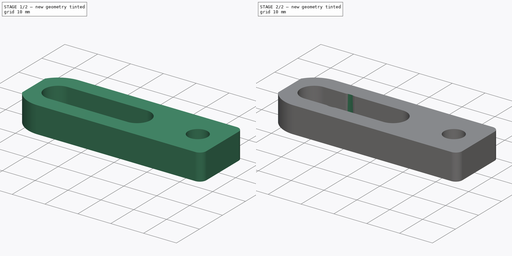
[diagram: build sequence overview — one tinted view per stage of 2, left to right]
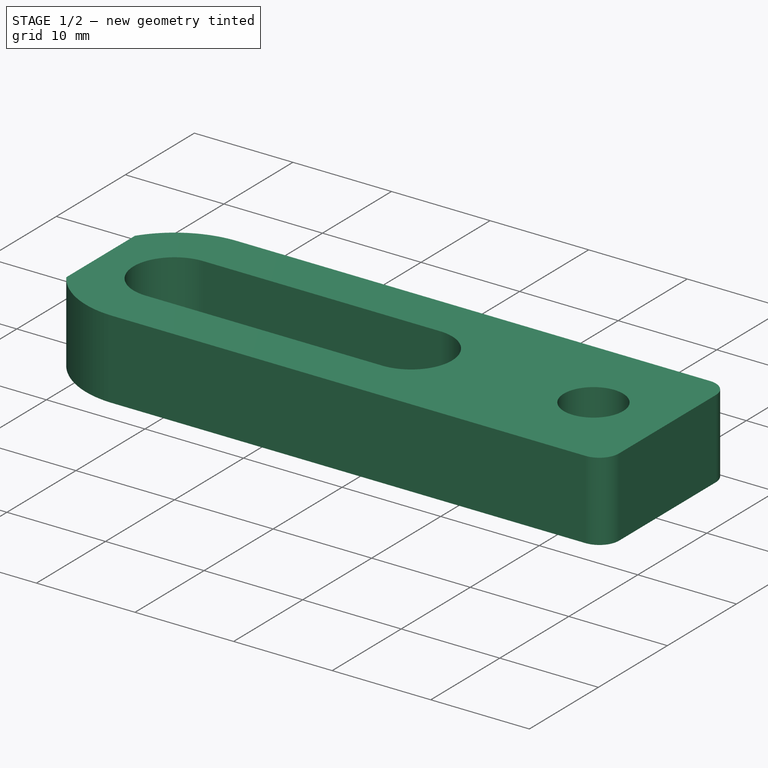
[diagram: stage 1 of 2 — iso view after this stage's code; geometry added in this stage tinted green]
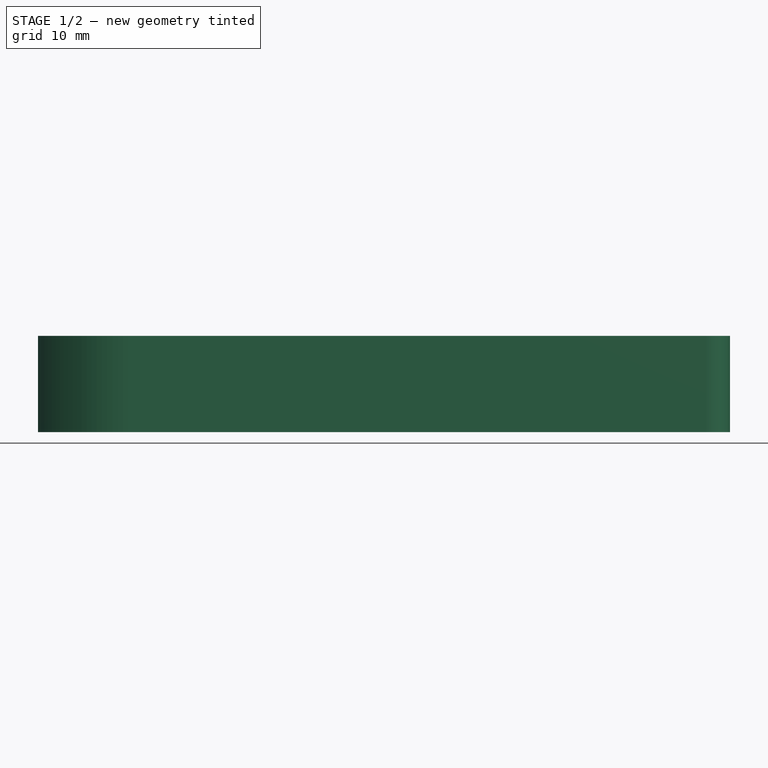
[diagram: stage 1 of 2 — front view after this stage's code; geometry added in this stage tinted green]
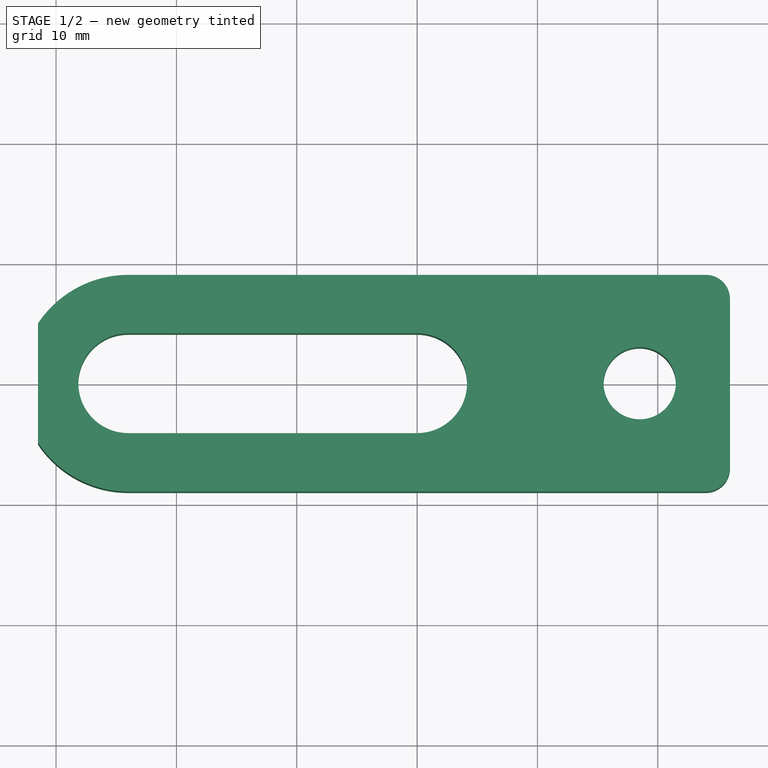
[diagram: stage 1 of 2 — top view after this stage's code; geometry added in this stage tinted green]
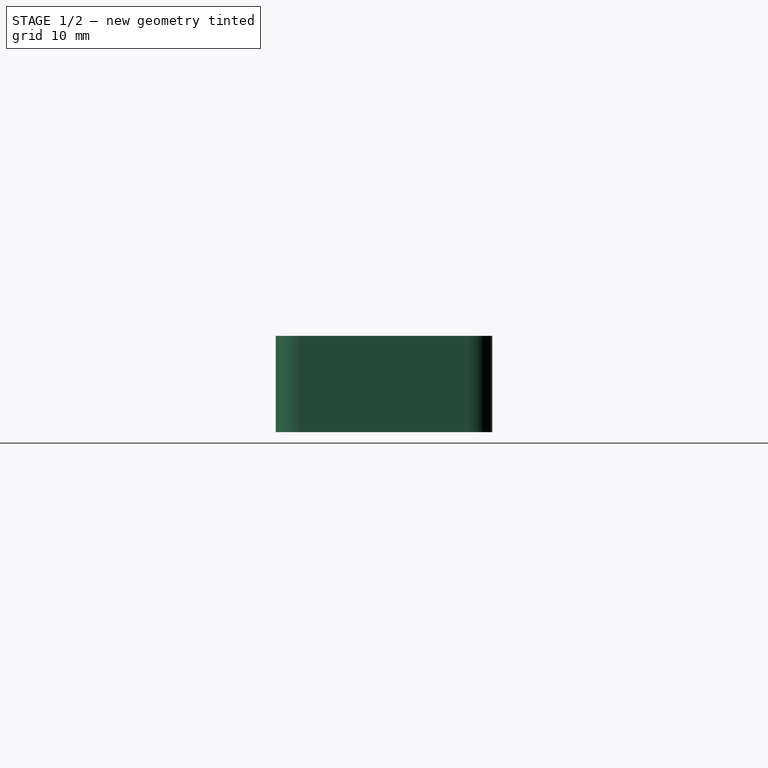
[diagram: stage 1 of 2 — right view after this stage's code; geometry added in this stage tinted green]
FCSTD DOCUMENT  (FreeCAD 0.19R24366 (Git))
Label: Gas strut coupling adapter slotted
License: All rights reserved
LicenseURL: http://en.wikipedia.org/wiki/All_rights_reserved
objects: Sketcher::SketchObject×2, PartDesign::Pad×1, PartDesign::Pocket×1, PartDesign::Body×1
note: 7 computed .brp shape members not serialized (recipe doc carries the construction recipe); baked Part::Feature solids carry a one-line shape summary decoded from their .brp

FEATURE [Sketcher::SketchObject] Sketch
  FullyConstrained = true
  MapMode = 5
  Support = -> [XY_Plane]
  sketch-geometry (19):
    g0: ArcOfCircle CenterX=0 CenterY=0 CenterZ=0 NormalX=0 NormalY=0 NormalZ=1 AngleXU=0 Radius=4.15 StartAngle=4.71239 EndAngle=7.85398
    g1: Circle CenterX=18.5 CenterY=0 CenterZ=0 NormalX=0 NormalY=0 NormalZ=1 AngleXU=0 Radius=3
    g2: LineSegment StartX=-24 StartY=9 StartZ=0 EndX=24 EndY=9 EndZ=0
    g3: LineSegment StartX=26 StartY=7 StartZ=0 EndX=26 EndY=-7 EndZ=0
    g4: LineSegment StartX=24 StartY=-9 StartZ=0 EndX=-24 EndY=-9 EndZ=0
    g5: ArcOfCircle CenterX=24 CenterY=7 CenterZ=0 NormalX=0 NormalY=0 NormalZ=1 AngleXU=0 Radius=2 StartAngle=0 EndAngle=1.5708
    g6: ArcOfCircle CenterX=24 CenterY=-7 CenterZ=0 NormalX=0 NormalY=0 NormalZ=1 AngleXU=0 Radius=2 StartAngle=4.71239 EndAngle=6.28319
    g7: ArcOfCircle CenterX=-24 CenterY=0 CenterZ=0 NormalX=0 NormalY=0 NormalZ=1 AngleXU=0 Radius=9 StartAngle=1.5708 EndAngle=2.5559
    g8: ArcOfCircle CenterX=-24 CenterY=0 CenterZ=0 NormalX=0 NormalY=0 NormalZ=1 AngleXU=0 Radius=4.15 StartAngle=1.5708 EndAngle=4.71239
    g9: LineSegment StartX=-24 StartY=-4.15 StartZ=0 EndX=1.16953e-05 EndY=-4.15 EndZ=0
    g10: LineSegment StartX=1.3e-15 StartY=4.15 StartZ=0 EndX=-24 EndY=4.15 EndZ=0
    g11: Circle CenterX=18.5 CenterY=0 CenterZ=0 NormalX=0 NormalY=0 NormalZ=1 AngleXU=0 Radius=11.5
    g12: Circle CenterX=0 CenterY=0 CenterZ=0 NormalX=0 NormalY=0 NormalZ=1 AngleXU=0 Radius=6.5
    g13: GeomPoint X=-33 Y=0 Z=0
    g14: GeomPoint X=-16 Y=0 Z=0
    g15: LineSegment StartX=18.5 StartY=3 StartZ=0 EndX=18.5 EndY=-3 EndZ=0
    g16: LineSegment StartX=15.5 StartY=0 StartZ=0 EndX=21.5 EndY=0 EndZ=0
    g17: LineSegment StartX=-31.5 StartY=4.97495 StartZ=0 EndX=-31.5 EndY=-4.97495 EndZ=0
    g18: ArcOfCircle CenterX=-24 CenterY=0 CenterZ=0 NormalX=0 NormalY=0 NormalZ=1 AngleXU=0 Radius=9 StartAngle=3.72728 EndAngle=4.71239
  constraints (51):
    c: Coincident(g0,g-1)
    c: PointOnObject(g1,g-1)
    c: DistanceX(g0,g1) = 18.5
    c: Horizontal(g2)
    c: Horizontal(g4)
    c: Vertical(g3)
    c: Tangent(g2,g5) = 1.5708
    c: Tangent(g3,g5) = 1.5708
    c: Tangent(g3,g6) = 1.5708
    c: Tangent(g4,g6) = 1.5708
    c: DistanceX(g1,g3) = 7.5
    c: Equal(g6,g5)
    c: Radius(g6) = 2
    c: DistanceY(g4,g2) = 18
    c: PointOnObject(g7,g-1)
    c: Coincident(g8,g7)
    c: Equal(g8,g0)
    c: Horizontal(g9)
    c: Coincident(g8,g10)
    c: Tangent(g8,g9) = -1.5708
    c: Coincident(g0,g9)
    c: Tangent(g0,g10) = -1.5708
    c: DistanceX(g7,g0) = 24
    c: Horizontal(g10)
    c: Tangent(g7,g2) = 1.5708
    c: Coincident(g11,g1)
    c: Radius(g11) = 11.5
    c: Coincident(g12,g0)
    c: PointOnObject(g13,g-1)
    c: PointOnObject(g13,g7)
    c: PointOnObject(g14,g-1)
    c: DistanceX(g14,g0) = 16
    c: DistanceX(g14,g1) = 34.5
    c: Diameter(g1) = 6
    c: Diameter(g0) = 8.3
    c: Diameter(g12) = 13
    c: PointOnObject(g15,g1)
    c: PointOnObject(g15,g1)
    c: Vertical(g15)
    c: PointOnObject(g16,g1)
    c: PointOnObject(g16,g1)
    c: Horizontal(g16)
    c: PointOnObject(g1,g16)
    c: PointOnObject(g1,g15)
    c: Symmetric(g17,g17,g-1)
    c: DistanceX(g17,g0) = 31.5
    c: Equal(g7,g18)
    c: Coincident(g7,g17)
    c: PointOnObject(g18,g17)
    c: Coincident(g7,g18)
    c: Tangent(g4,g18) = 1.5708
FEATURE [PartDesign::Pad] Pad  label="Plate thickness"
  Direction = (1,1,1)
  Length = 8
  Length2 = 100
  Midplane = true
  Profile = -> Sketch
  Type = 0
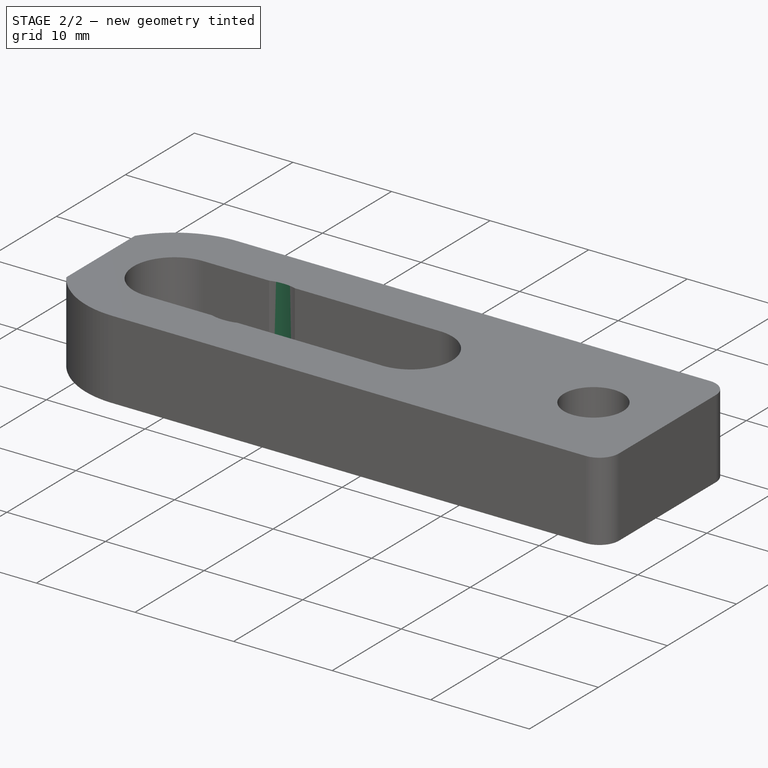
[diagram: stage 2 of 2 — iso view after this stage's code; geometry added in this stage tinted green]
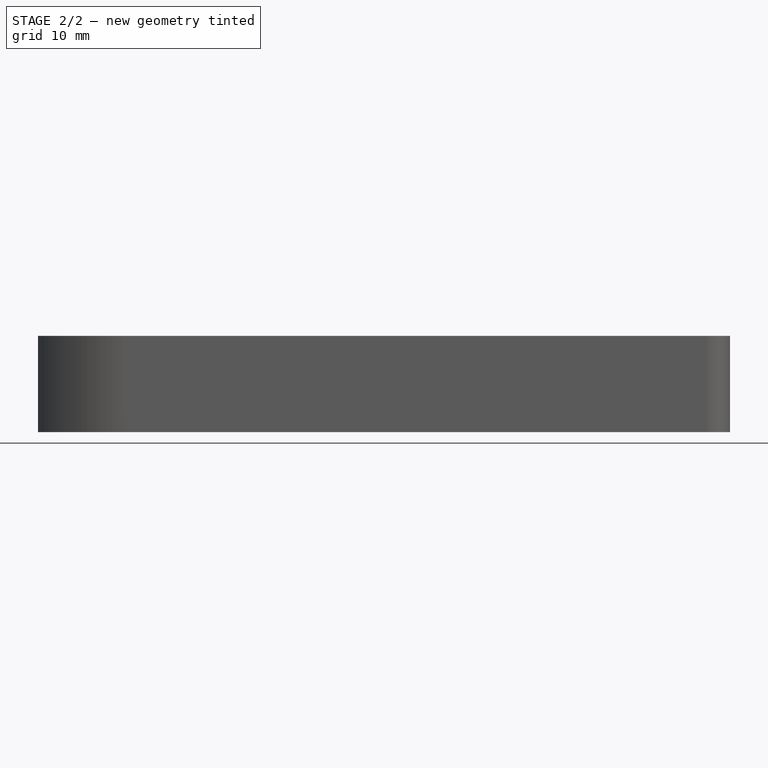
[diagram: stage 2 of 2 — front view after this stage's code; geometry added in this stage tinted green]
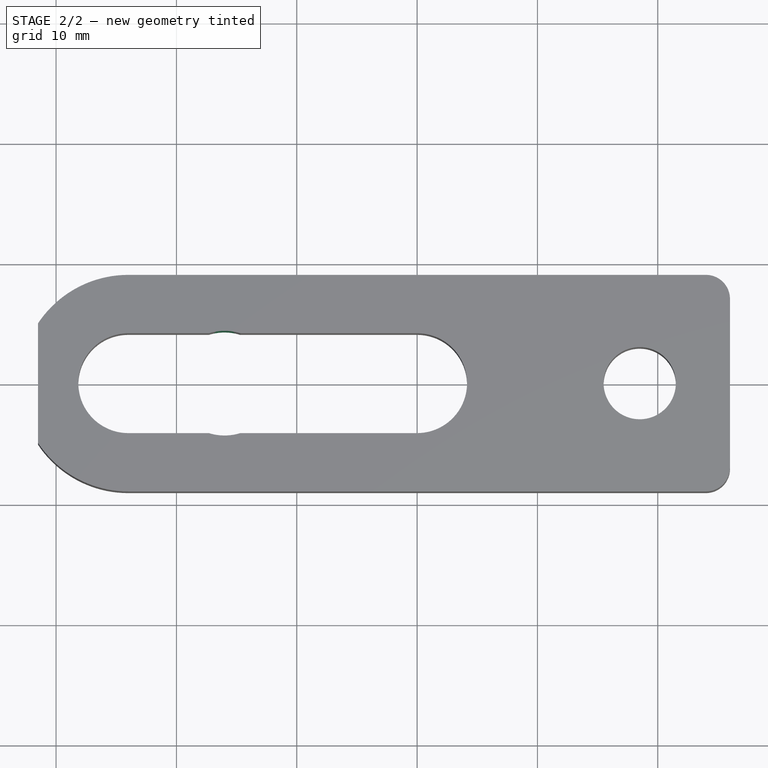
[diagram: stage 2 of 2 — top view after this stage's code; geometry added in this stage tinted green]
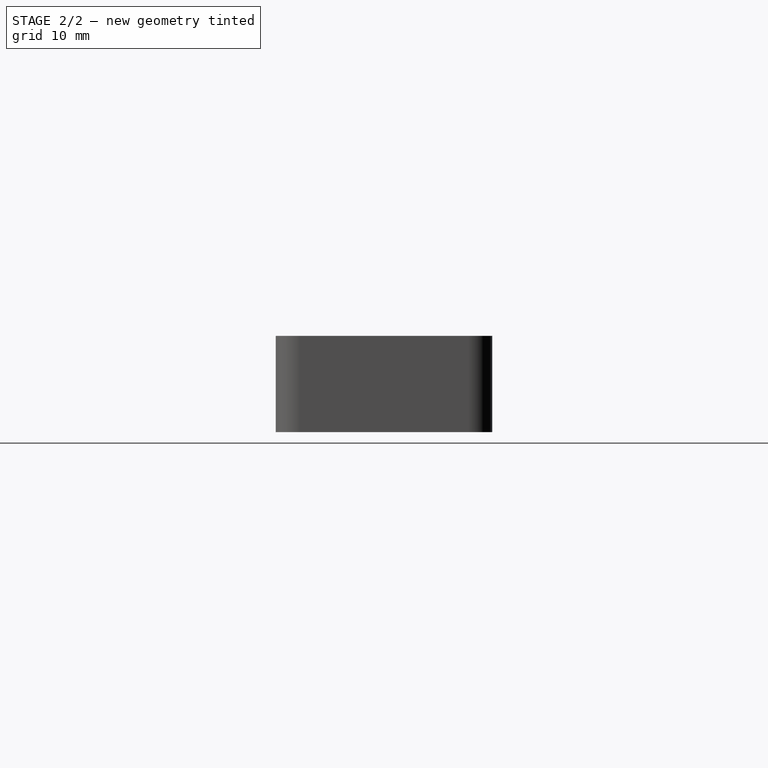
[diagram: stage 2 of 2 — right view after this stage's code; geometry added in this stage tinted green]
FEATURE [Sketcher::SketchObject] Sketch001  label="3D Allignment mark"
  FullyConstrained = true
  MapMode = 5
  Support = -> [XY_Plane]
  sketch-geometry (1):
    g0: Circle CenterX=-16 CenterY=0 CenterZ=0 NormalX=0 NormalY=0 NormalZ=1 AngleXU=0 Radius=4.35
  constraints (3):
    c: PointOnObject(g0,g-1)
    c: DistanceX(g0,g-1) = 16
    c: Diameter(g0) = 8.7
FEATURE [PartDesign::Pocket] Pocket  label="3D Allignment mark cut"
  BaseFeature = -> Pad
  Length = 5
  Length2 = 100
  Midplane = true
  Profile = -> Sketch001
  Type = 1
FEATURE [PartDesign::Body] Body
  Group = -> [Sketch,Pad,Sketch001,Pocket]
  Origin = -> Origin
  Tip = -> Pocket
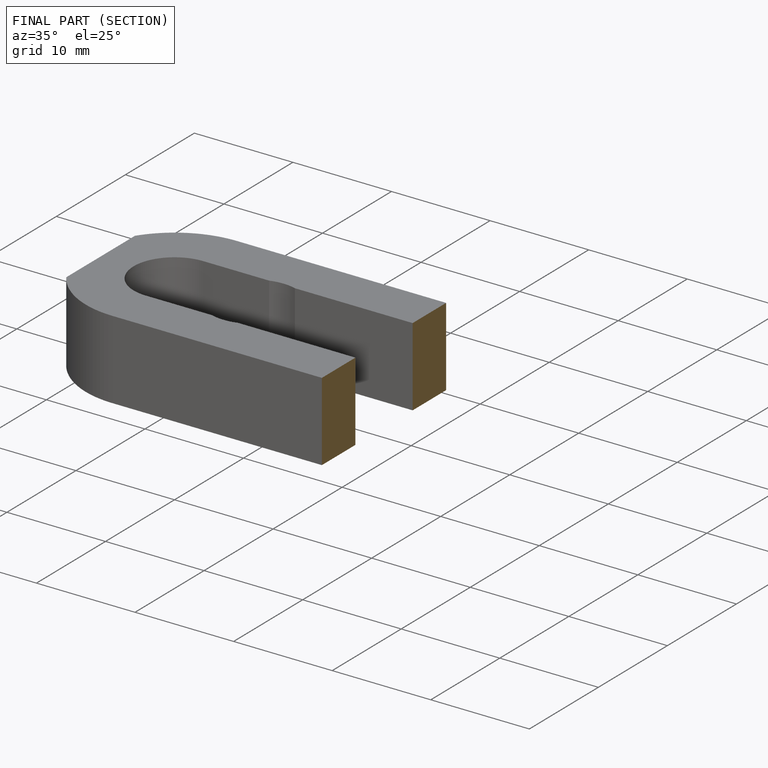
[diagram: finished part — half-section view (interior)]
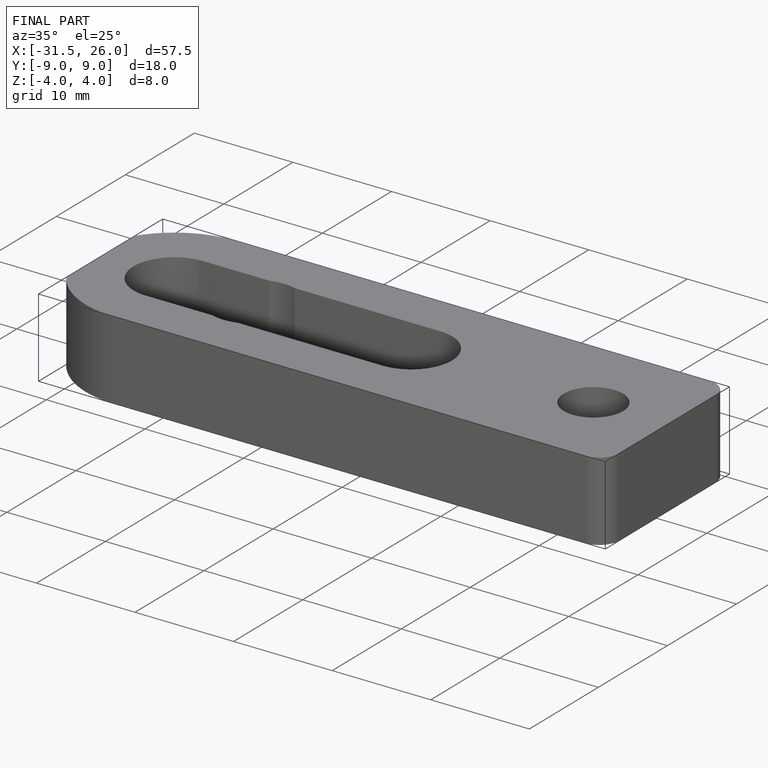
[diagram: finished part — iso view with bounding-box wireframe]
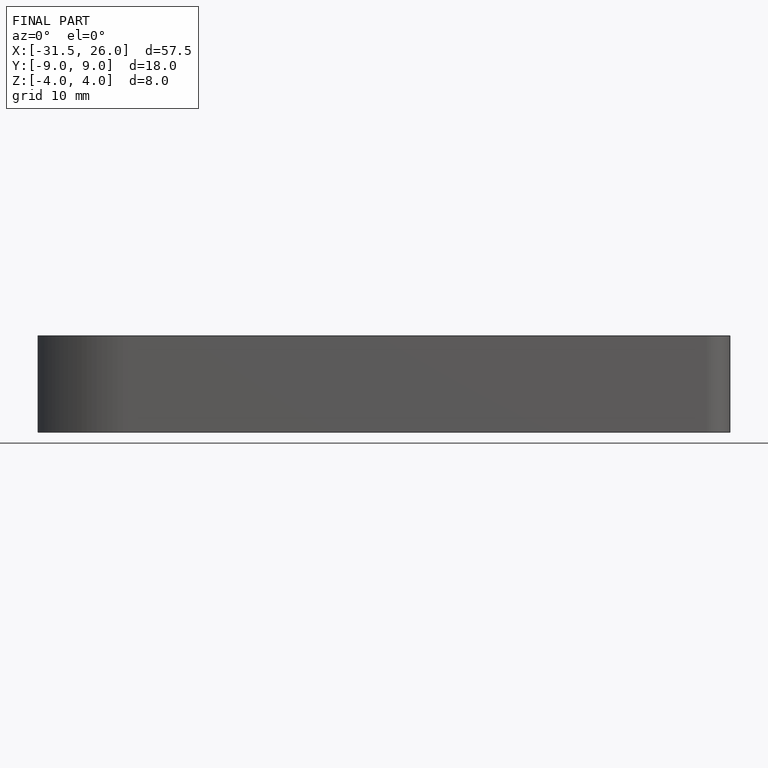
[diagram: finished part — front view with bounding-box wireframe]
